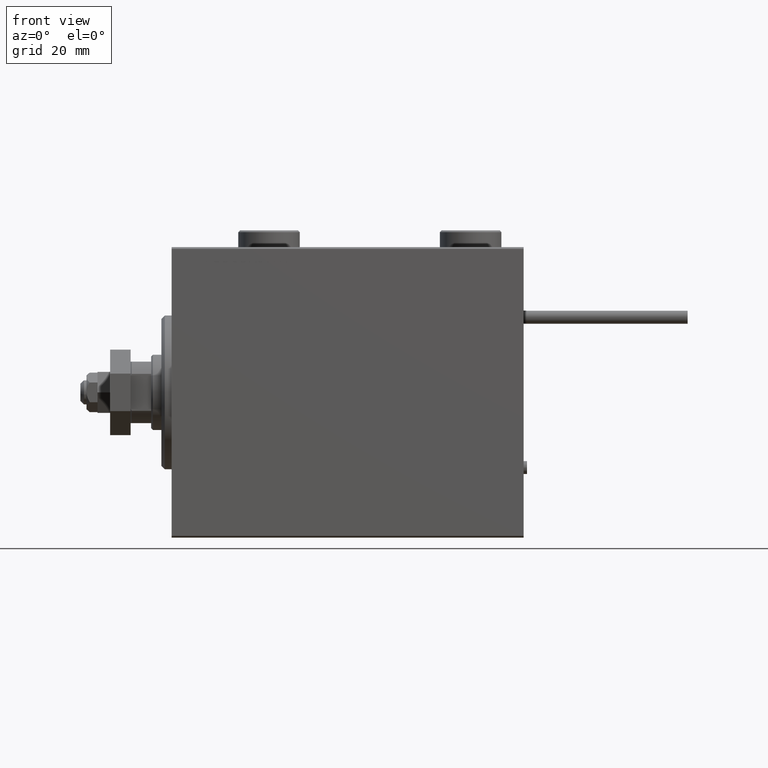
[diagram: clean part render]
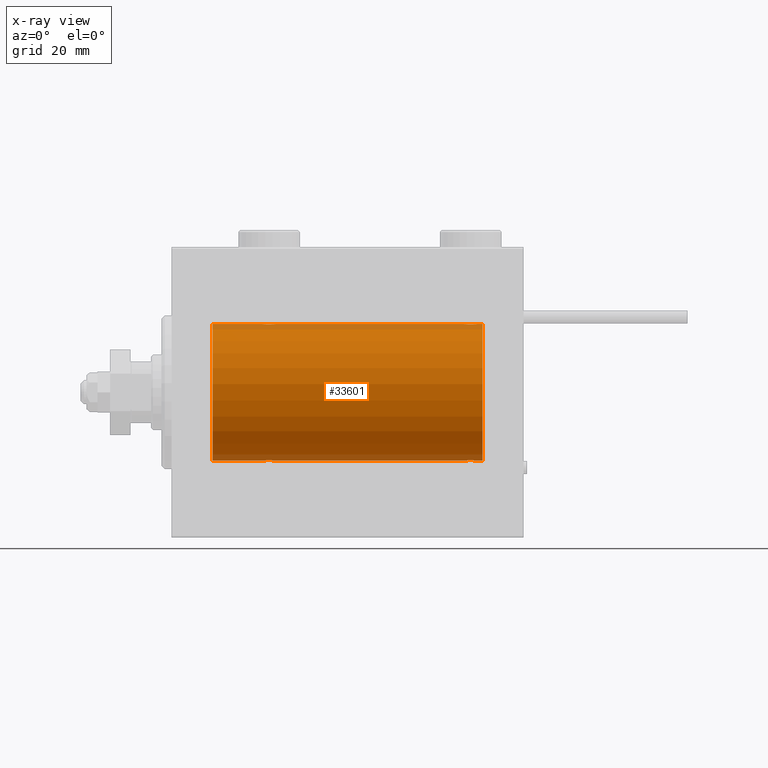
[diagram: x-ray — body ghosted, one internal face saturated and labeled with its STEP entity id]
A machine part, front view, then the same camera in x-ray: the body is ghosted and one INTERNAL B-rep face — a face not visible from any outside direction — is saturated and labeled: STEP entity #33601.
In plain terms, the highlighted cylindrical surface (partial cylindrical patch) has radius 20 mm, axis along (-1, -0, -0).
Its self-contained STEP definition (entity closure, byte-faithful):
#94 = CARTESIAN_POINT ( 'NONE',  ( 85.55244937117494430, -0.5243189001515019543, 19.99457699142849876 ) ) ;
#179 = CARTESIAN_POINT ( 'NONE',  ( 86.98351467081094768, -1.936551476643015191, -19.90603968831098669 ) ) ;
#355 = LINE ( 'NONE', #10432, #9098 ) ;
#619 = CARTESIAN_POINT ( 'NONE',  ( 86.85369326075358742, -1.897222639860597360, 19.90987429971497491 ) ) ;
#720 = CARTESIAN_POINT ( 'NONE',  ( 88.01923512135279282, -1.935816449315129750, -19.90611141657401362 ) ) ;
#778 = VERTEX_POINT ( 'NONE', #7917 ) ;
#883 = CARTESIAN_POINT ( 'NONE',  ( 86.61170562792906935, -1.796691196322320216, 19.91919800395356788 ) ) ;
#958 = CARTESIAN_POINT ( 'NONE',  ( 30.50000000000000000, 2.449293582768389958E-15, -20.00000000000000000 ) ) ;
#1039 = DIRECTION ( 'NONE',  ( -1.000000000000000000, -0.000000000000000000, -0.000000000000000000 ) ) ;
#1534 = CARTESIAN_POINT ( 'NONE',  ( 29.50067219139244656, -1.736582545981375292, 19.92459705242981371 ) ) ;
#1728 = CARTESIAN_POINT ( 'NONE',  ( 11.99999999999999645, 0.000000000000000000, 20.00000000000000000 ) ) ;
#1750 = ORIENTED_EDGE ( 'NONE', *, *, #11177, .T. ) ;
#2014 = CARTESIAN_POINT ( 'NONE',  ( 11.99999999999999645, 0.000000000000000000, 0.000000000000000000 ) ) ;
#2212 = LINE ( 'NONE', #17890, #10176 ) ;
#2329 = CARTESIAN_POINT ( 'NONE',  ( 29.82096906847289119, -1.507328959728493567, 19.94333197382385592 ) ) ;
#2446 = CARTESIAN_POINT ( 'NONE',  ( 27.98351467081095123, -1.936551476643005198, -19.90603968831098314 ) ) ;
#2598 = CARTESIAN_POINT ( 'NONE',  ( 27.49693443660397918, -1.735203193119897902, 19.92471783160911158 ) ) ;
#3048 = B_SPLINE_CURVE_WITH_KNOTS ( 'NONE', 3,
 ( #36732, #16544, #94, #29307, #20803, #12298, #5141, #20282, #883, #619, #28241, #32746, #48991, #21075, #12829, #28782, #8055, #44746, #8580, #28505, #41260, #24261, #29040, #17074, #33274, #33019 ),
 .UNSPECIFIED., .F., .F.,
 ( 4, 2, 2, 2, 2, 2, 2, 2, 2, 2, 2, 2, 4 ),
 ( 0.006256819553329836213, 0.007038738568778784600, 0.007820657584227733855, 0.008211617091952222794, 0.008602576599676711733, 0.008993536107401198937, 0.009384495615125687876, 0.009775455122850176815, 0.01016641463057466402, 0.01055737413829915296, 0.01094833364602364190, 0.01173025266147261630, 0.01251217167692159418 ),
 .UNSPECIFIED. ) ;
#3147 = ORIENTED_EDGE ( 'NONE', *, *, #45146, .F. ) ;
#3234 = CARTESIAN_POINT ( 'NONE',  ( 30.09941524884030173, -1.228758402364235502, -19.96307487248084911 ) ) ;
#3988 = CARTESIAN_POINT ( 'NONE',  ( 26.50000000000001066, -0.2644051013331030209, -20.00000000000000355 ) ) ;
#4132 = VERTEX_POINT ( 'NONE', #1728 ) ;
#4342 = VERTEX_POINT ( 'NONE', #40439 ) ;
#4588 = LINE ( 'NONE', #20513, #12442 ) ;
#5141 = CARTESIAN_POINT ( 'NONE',  ( 86.27971054205535495, -1.589957321664204448, 19.93683391378736403 ) ) ;
#5209 = CARTESIAN_POINT ( 'NONE',  ( 26.50000000000000355, -3.809869420541414000E-15, -20.00000000000000000 ) ) ;
#5231 = CARTESIAN_POINT ( 'NONE',  ( 87.76358144091418012, -1.986835489085820639, -19.90108393514801222 ) ) ;
#5347 = CARTESIAN_POINT ( 'NONE',  ( 89.50000000000000000, 2.449293582762473501E-15, -20.00000000000000000 ) ) ;
#5571 = CYLINDRICAL_SURFACE ( 'NONE', #28522, 20.00000000000000000 ) ;
#5793 = CARTESIAN_POINT ( 'NONE',  ( 27.61170562792909422, -1.796691196322319994, 19.91919800395357143 ) ) ;
#6052 = CARTESIAN_POINT ( 'NONE',  ( 28.23641855908585541, -1.986835489085814643, 19.90108393514801222 ) ) ;
#6192 = ORIENTED_EDGE ( 'NONE', *, *, #39965, .T. ) ;
#6234 = CARTESIAN_POINT ( 'NONE',  ( 26.50000000000000355, -1.552596590610734385E-23, 20.00000000000000000 ) ) ;
#6314 = CARTESIAN_POINT ( 'NONE',  ( 30.49999999999999289, -0.2644051013330969702, 20.00000000000000711 ) ) ;
#6432 = EDGE_CURVE ( 'NONE', #17645, #25548, #3048, .T. ) ;
#6579 = CARTESIAN_POINT ( 'NONE',  ( 30.50000000000000000, -4.014971335008767791E-15, 20.00000000000000000 ) ) ;
#6614 = CARTESIAN_POINT ( 'NONE',  ( 91.00000000000000000, 0.000000000000000000, 0.000000000000000000 ) ) ;
#7917 = CARTESIAN_POINT ( 'NONE',  ( 85.49999999999998579, -1.207436508668459186E-14, -20.00000000000000000 ) ) ;
#7997 = CARTESIAN_POINT ( 'NONE',  ( 30.50000000000000000, -4.014971335008767791E-15, 20.00000000000000000 ) ) ;
#8055 = CARTESIAN_POINT ( 'NONE',  ( 88.14348528733044930, -1.898187925611334315, 19.90978194174746818 ) ) ;
#8419 = CARTESIAN_POINT ( 'NONE',  ( 85.90225308445272390, -1.230936344679285144, -19.96293863536309843 ) ) ;
#8553 = B_SPLINE_CURVE_WITH_KNOTS ( 'NONE', 3,
 ( #38445, #10039, #42458, #38708, #38978, #50431, #10292, #2598, #5793, #26764, #29952, #6052, #37914, #18259, #46183, #51218, #30995, #26502, #1534, #50170, #2329, #42716, #47241, #25973, #6314, #6579 ),
 .UNSPECIFIED., .F., .F.,
 ( 4, 2, 2, 2, 2, 2, 2, 2, 2, 2, 2, 2, 4 ),
 ( 0.006256819553329811059, 0.007038738568778783733, 0.007820657584227756406, 0.008211617091952238406, 0.008602576599676722141, 0.008993536107401204141, 0.009384495615125686141, 0.009775455122850168141, 0.01016641463057465014, 0.01055737413829913214, 0.01094833364602361414, 0.01173025266147257814, 0.01251217167692154214 ),
 .UNSPECIFIED. ) ;
#8580 = CARTESIAN_POINT ( 'NONE',  ( 88.50067219139242525, -1.736582545981368852, 19.92459705242980661 ) ) ;
#8644 = ORIENTED_EDGE ( 'NONE', *, *, #38402, .T. ) ;
#9031 = VECTOR ( 'NONE', #1039, 1000.000000000000000 ) ;
#9098 = VECTOR ( 'NONE', #50853, 1000.000000000000000 ) ;
#9227 = CARTESIAN_POINT ( 'NONE',  ( 85.49999999999998579, -1.553188236289650144E-23, 20.00000000000000000 ) ) ;
#9795 = VERTEX_POINT ( 'NONE', #52513 ) ;
#10026 = AXIS2_PLACEMENT_3D ( 'NONE', #2014, #18210, #50651 ) ;
#10039 = CARTESIAN_POINT ( 'NONE',  ( 26.50000000000000711, -0.2610801504281929919, 20.00000000000000000 ) ) ;
#10176 = VECTOR ( 'NONE', #38331, 1000.000000000000000 ) ;
#10292 = CARTESIAN_POINT ( 'NONE',  ( 27.27971054205535850, -1.589957321664211998, 19.93683391378736047 ) ) ;
#10432 = CARTESIAN_POINT ( 'NONE',  ( 91.00000000000000000, 2.449293598294706513E-15, -20.00000000000000000 ) ) ;
#11177 = EDGE_CURVE ( 'NONE', #4342, #48505, #355, .T. ) ;
#11353 = ORIENTED_EDGE ( 'NONE', *, *, #6432, .T. ) ;
#11975 = EDGE_CURVE ( 'NONE', #9795, #4132, #16781, .T. ) ;
#12130 = CARTESIAN_POINT ( 'NONE',  ( 85.55320515808205073, -0.5270924491156777636, -19.99450181871976540 ) ) ;
#12298 = CARTESIAN_POINT ( 'NONE',  ( 86.17693331080532460, -1.505486175075777311, 19.94347168299868045 ) ) ;
#12442 = VECTOR ( 'NONE', #29022, 1000.000000000000000 ) ;
#12635 = ORIENTED_EDGE ( 'NONE', *, *, #15009, .T. ) ;
#12829 = CARTESIAN_POINT ( 'NONE',  ( 87.76077256031567231, -1.987205673487806967, 19.90104673894210663 ) ) ;
#12918 = CARTESIAN_POINT ( 'NONE',  ( 87.23922743968432769, -1.987205673487818514, -19.90104673894210663 ) ) ;
#13766 = VERTEX_POINT ( 'NONE', #5209 ) ;
#14104 = LINE ( 'NONE', #39324, #42321 ) ;
#14898 = CARTESIAN_POINT ( 'NONE',  ( 30.50000000000000000, 2.449293582768389958E-15, -20.00000000000000000 ) ) ;
#15009 = EDGE_CURVE ( 'NONE', #13766, #9795, #33826, .T. ) ;
#15418 = CARTESIAN_POINT ( 'NONE',  ( 29.14630673924643744, -1.897222639860594029, -19.90987429971496780 ) ) ;
#16544 = CARTESIAN_POINT ( 'NONE',  ( 85.50000000000000000, -0.2610801504281927699, 20.00000000000000355 ) ) ;
#16559 = CARTESIAN_POINT ( 'NONE',  ( 91.00000000000000000, 2.449293598294706513E-15, -20.00000000000000000 ) ) ;
#16781 = CIRCLE ( 'NONE', #10026, 20.00000000000000000 ) ;
#16994 = CARTESIAN_POINT ( 'NONE',  ( 89.50000000000000000, 9.984436361108698300E-16, 20.00000000000000000 ) ) ;
#17074 = CARTESIAN_POINT ( 'NONE',  ( 89.44679484191794927, -0.5270924491156651071, 19.99450181871975829 ) ) ;
#17249 = CARTESIAN_POINT ( 'NONE',  ( 91.00000000000000000, 0.000000000000000000, 20.00000000000000000 ) ) ;
#17645 = VERTEX_POINT ( 'NONE', #9227 ) ;
#17790 = DIRECTION ( 'NONE',  ( 0.000000000000000000, 0.000000000000000000, 1.000000000000000000 ) ) ;
#17890 = CARTESIAN_POINT ( 'NONE',  ( 91.00000000000000000, 0.000000000000000000, 20.00000000000000000 ) ) ;
#18210 = DIRECTION ( 'NONE',  ( -1.000000000000000000, 0.000000000000000000, 0.000000000000000000 ) ) ;
#18259 = CARTESIAN_POINT ( 'NONE',  ( 28.63058871710834552, -2.000100592782553921, 19.89973863218035888 ) ) ;
#19063 = EDGE_CURVE ( 'NONE', #25561, #25548, #2212, .T. ) ;
#19159 = CARTESIAN_POINT ( 'NONE',  ( 29.72028945794465571, -1.589957321664208223, -19.93683391378736047 ) ) ;
#19361 = ORIENTED_EDGE ( 'NONE', *, *, #42300, .F. ) ;
#19422 = CARTESIAN_POINT ( 'NONE',  ( 29.50306556339602437, -1.735203193119894349, -19.92471783160910803 ) ) ;
#19929 = CARTESIAN_POINT ( 'NONE',  ( 27.85651471266959334, -1.898187925611338533, -19.90978194174746818 ) ) ;
#20282 = CARTESIAN_POINT ( 'NONE',  ( 86.49693443660396497, -1.735203193119890352, 19.92471783160910803 ) ) ;
#20378 = CARTESIAN_POINT ( 'NONE',  ( 88.50306556339602082, -1.735203193119900122, -19.92471783160911158 ) ) ;
#20513 = CARTESIAN_POINT ( 'NONE',  ( 91.00000000000000000, 0.000000000000000000, 20.00000000000000000 ) ) ;
#20803 = CARTESIAN_POINT ( 'NONE',  ( 85.90058475115969827, -1.228758402364240609, 19.96307487248084911 ) ) ;
#20900 = CARTESIAN_POINT ( 'NONE',  ( 89.50000000000000000, 2.449293582762473501E-15, -20.00000000000000000 ) ) ;
#21075 = CARTESIAN_POINT ( 'NONE',  ( 87.63058871710828157, -2.000100592782551256, 19.89973863218035888 ) ) ;
#21176 = CARTESIAN_POINT ( 'NONE',  ( 89.24825913460018967, -1.005710574260839651, -19.97614991974274901 ) ) ;
#21240 = LINE ( 'NONE', #37424, #9031 ) ;
#22225 = CARTESIAN_POINT ( 'NONE',  ( 85.49999999999998579, -1.207436508668459186E-14, -20.00000000000000000 ) ) ;
#22361 = CARTESIAN_POINT ( 'NONE',  ( 28.36941128289166159, -2.000100592782553921, -19.89973863218036598 ) ) ;
#22891 = CIRCLE ( 'NONE', #49224, 20.00000000000000000 ) ;
#23409 = CARTESIAN_POINT ( 'NONE',  ( 30.24825913460018612, -1.005710574260838985, -19.97614991974274190 ) ) ;
#24173 = CARTESIAN_POINT ( 'NONE',  ( 27.17903093152710525, -1.507328959728492457, -19.94333197382385592 ) ) ;
#24176 = EDGE_LOOP ( 'NONE', ( #3147, #1750, #43477, #8644, #6192, #12635, #38222, #28548, #30183, #19361, #11353, #52505 ) ) ;
#24261 = CARTESIAN_POINT ( 'NONE',  ( 89.09774691554730452, -1.230936344679272043, 19.96293863536309487 ) ) ;
#24361 = CARTESIAN_POINT ( 'NONE',  ( 86.28194580527849666, -1.591668229360199804, -19.93669678979812687 ) ) ;
#24630 = CARTESIAN_POINT ( 'NONE',  ( 85.50000000000001421, -0.2644051013331136790, -20.00000000000000355 ) ) ;
#25425 = CARTESIAN_POINT ( 'NONE',  ( 88.14630673924646942, -1.897222639860602245, -19.90987429971496425 ) ) ;
#25434 = CARTESIAN_POINT ( 'NONE',  ( 27.28194580527848601, -1.591668229360197140, -19.93669678979812332 ) ) ;
#25496 = DIRECTION ( 'NONE',  ( -1.000000000000000000, -0.000000000000000000, -0.000000000000000000 ) ) ;
#25548 = VERTEX_POINT ( 'NONE', #16994 ) ;
#25561 = VERTEX_POINT ( 'NONE', #17249 ) ;
#25973 = CARTESIAN_POINT ( 'NONE',  ( 30.44679484191797414, -0.5270924491156706582, 19.99450181871975829 ) ) ;
#26006 = DIRECTION ( 'NONE',  ( -1.000000000000000000, 0.000000000000000000, 0.000000000000000000 ) ) ;
#26502 = CARTESIAN_POINT ( 'NONE',  ( 29.38579076670729151, -1.797933656607919817, 19.91908554465558367 ) ) ;
#26679 = EDGE_CURVE ( 'NONE', #40458, #51070, #8553, .T. ) ;
#26764 = CARTESIAN_POINT ( 'NONE',  ( 27.85369326075355545, -1.897222639860597360, 19.90987429971497491 ) ) ;
#26860 = DIRECTION ( 'NONE',  ( -1.000000000000000000, -0.000000000000000000, -0.000000000000000000 ) ) ;
#27649 = CARTESIAN_POINT ( 'NONE',  ( 28.76358144091416236, -1.986835489085814199, -19.90108393514801222 ) ) ;
#27909 = CARTESIAN_POINT ( 'NONE',  ( 27.61420923329272981, -1.797933656607917596, -19.91908554465558367 ) ) ;
#28152 = CARTESIAN_POINT ( 'NONE',  ( 26.90225308445269903, -1.230936344679278260, -19.96293863536309132 ) ) ;
#28241 = CARTESIAN_POINT ( 'NONE',  ( 86.98076487864722139, -1.935816449315123977, 19.90611141657402072 ) ) ;
#28505 = CARTESIAN_POINT ( 'NONE',  ( 88.71805419472150334, -1.591668229360190034, 19.93669678979813042 ) ) ;
#28522 = AXIS2_PLACEMENT_3D ( 'NONE', #46234, #25496, #17790 ) ;
#28548 = ORIENTED_EDGE ( 'NONE', *, *, #34230, .F. ) ;
#28608 = CARTESIAN_POINT ( 'NONE',  ( 85.75313023696931225, -1.008108445278694587, -19.97602680192586888 ) ) ;
#28782 = CARTESIAN_POINT ( 'NONE',  ( 88.01648532918903811, -1.936551476643001202, 19.90603968831098669 ) ) ;
#28797 = DIRECTION ( 'NONE',  ( -1.000000000000000000, -0.000000000000000000, -0.000000000000000000 ) ) ;
#29022 = DIRECTION ( 'NONE',  ( -1.000000000000000000, -0.000000000000000000, -0.000000000000000000 ) ) ;
#29040 = CARTESIAN_POINT ( 'NONE',  ( 89.24686976303071617, -1.008108445278681931, 19.97602680192586178 ) ) ;
#29307 = CARTESIAN_POINT ( 'NONE',  ( 85.75174086539982454, -1.005710574260841872, 19.97614991974274190 ) ) ;
#29401 = CARTESIAN_POINT ( 'NONE',  ( 89.09941524884030173, -1.228758402364235724, -19.96307487248084556 ) ) ;
#29952 = CARTESIAN_POINT ( 'NONE',  ( 27.98076487864722495, -1.935816449315125087, 19.90611141657401362 ) ) ;
#30183 = ORIENTED_EDGE ( 'NONE', *, *, #26679, .T. ) ;
#30995 = CARTESIAN_POINT ( 'NONE',  ( 29.14348528733041377, -1.898187925611340088, 19.90978194174746818 ) ) ;
#31109 = CARTESIAN_POINT ( 'NONE',  ( 29.82306668919470383, -1.505486175075772870, -19.94347168299867334 ) ) ;
#31621 = CARTESIAN_POINT ( 'NONE',  ( 29.01923512135276795, -1.935816449315124643, -19.90611141657401717 ) ) ;
#32315 = CARTESIAN_POINT ( 'NONE',  ( 88.82306668919471804, -1.505486175075774646, -19.94347168299867334 ) ) ;
#32581 = CARTESIAN_POINT ( 'NONE',  ( 86.61420923329271204, -1.797933656607926700, -19.91908554465557302 ) ) ;
#32712 = B_SPLINE_CURVE_WITH_KNOTS ( 'NONE', 3,
 ( #20900, #45637, #44849, #21176, #29401, #32315, #40563, #20378, #49355, #25425, #720, #5231, #36569, #41624, #12918, #179, #33115, #32581, #36310, #24361, #48547, #8419, #28608, #12130, #24630, #22225 ),
 .UNSPECIFIED., .F., .F.,
 ( 4, 2, 2, 2, 2, 2, 2, 2, 2, 2, 2, 2, 4 ),
 ( 0.006256819553329824070, 0.007038738568778795009, 0.007820657584227765080, 0.008211617091952250549, 0.008602576599676736019, 0.008993536107401221488, 0.009384495615125706958, 0.009775455122850190692, 0.01016641463057467790, 0.01055737413829916163, 0.01094833364602364884, 0.01173025266147261630, 0.01251217167692158724 ),
 .UNSPECIFIED. ) ;
#32746 = CARTESIAN_POINT ( 'NONE',  ( 87.23641855908589093, -1.986835489085812867, 19.90108393514801577 ) ) ;
#33019 = CARTESIAN_POINT ( 'NONE',  ( 89.50000000000000000, 9.984436361108698300E-16, 20.00000000000000000 ) ) ;
#33115 = CARTESIAN_POINT ( 'NONE',  ( 86.85651471266957913, -1.898187925611348081, -19.90978194174746818 ) ) ;
#33274 = CARTESIAN_POINT ( 'NONE',  ( 89.49999999999998579, -0.2644051013330985245, 19.99999999999999645 ) ) ;
#33381 = CARTESIAN_POINT ( 'NONE',  ( 27.49932780860757475, -1.736582545981376180, -19.92459705242981371 ) ) ;
#33601 = ADVANCED_FACE ( 'NONE', ( #46508 ), #5571, .F. ) ;
#33826 = LINE ( 'NONE', #16559, #39702 ) ;
#34230 = EDGE_CURVE ( 'NONE', #40458, #4132, #4588, .T. ) ;
#34521 = B_SPLINE_CURVE_WITH_KNOTS ( 'NONE', 3,
 ( #14898, #35091, #43362, #23409, #3234, #31109, #19159, #19422, #51856, #15418, #31621, #27649, #43880, #22361, #38556, #2446, #19929, #27909, #33381, #25434, #24173, #28152, #35868, #40372, #3988, #36643 ),
 .UNSPECIFIED., .F., .F.,
 ( 4, 2, 2, 2, 2, 2, 2, 2, 2, 2, 2, 2, 4 ),
 ( 0.006256819553329842284, 0.007038738568778818427, 0.007820657584227792836, 0.008211617091952278305, 0.008602576599676762040, 0.008993536107401245774, 0.009384495615125729509, 0.009775455122850213244, 0.01016641463057469871, 0.01055737413829918071, 0.01094833364602366618, 0.01173025266147263365, 0.01251217167692159939 ),
 .UNSPECIFIED. ) ;
#35091 = CARTESIAN_POINT ( 'NONE',  ( 30.49999999999999645, -0.2610801504281900498, -19.99999999999999645 ) ) ;
#35868 = CARTESIAN_POINT ( 'NONE',  ( 26.75313023696928738, -1.008108445278687704, -19.97602680192586533 ) ) ;
#36310 = CARTESIAN_POINT ( 'NONE',  ( 86.49932780860756054, -1.736582545981379289, -19.92459705242981016 ) ) ;
#36569 = CARTESIAN_POINT ( 'NONE',  ( 87.63365196142450486, -1.999898234284069432, -19.89975896996866211 ) ) ;
#36643 = CARTESIAN_POINT ( 'NONE',  ( 26.50000000000000355, -3.809869420541414000E-15, -20.00000000000000000 ) ) ;
#36732 = CARTESIAN_POINT ( 'NONE',  ( 85.49999999999998579, -1.553188236289650144E-23, 20.00000000000000000 ) ) ;
#37424 = CARTESIAN_POINT ( 'NONE',  ( 91.00000000000000000, 2.449293598294706513E-15, -20.00000000000000000 ) ) ;
#37914 = CARTESIAN_POINT ( 'NONE',  ( 28.36634803857552001, -1.999898234284063436, 19.89975896996866211 ) ) ;
#38222 = ORIENTED_EDGE ( 'NONE', *, *, #11975, .T. ) ;
#38331 = DIRECTION ( 'NONE',  ( -1.000000000000000000, -0.000000000000000000, -0.000000000000000000 ) ) ;
#38402 = EDGE_CURVE ( 'NONE', #778, #48203, #21240, .T. ) ;
#38445 = CARTESIAN_POINT ( 'NONE',  ( 26.50000000000000355, -1.552596590610734385E-23, 20.00000000000000000 ) ) ;
#38556 = CARTESIAN_POINT ( 'NONE',  ( 28.23922743968432059, -1.987205673487808966, -19.90104673894211018 ) ) ;
#38708 = CARTESIAN_POINT ( 'NONE',  ( 26.75174086539981033, -1.005710574260841206, 19.97614991974274190 ) ) ;
#38978 = CARTESIAN_POINT ( 'NONE',  ( 26.90058475115969827, -1.228758402364236391, 19.96307487248084556 ) ) ;
#39204 = EDGE_CURVE ( 'NONE', #48505, #778, #32712, .T. ) ;
#39324 = CARTESIAN_POINT ( 'NONE',  ( 91.00000000000000000, 0.000000000000000000, 20.00000000000000000 ) ) ;
#39702 = VECTOR ( 'NONE', #28797, 1000.000000000000000 ) ;
#39965 = EDGE_CURVE ( 'NONE', #48203, #13766, #34521, .T. ) ;
#40372 = CARTESIAN_POINT ( 'NONE',  ( 26.55320515808203297, -0.5270924491156698810, -19.99450181871976184 ) ) ;
#40439 = CARTESIAN_POINT ( 'NONE',  ( 91.00000000000000000, 2.449293598294706513E-15, -20.00000000000000000 ) ) ;
#40458 = VERTEX_POINT ( 'NONE', #6234 ) ;
#40563 = CARTESIAN_POINT ( 'NONE',  ( 88.72028945794461663, -1.589957321664213330, -19.93683391378736758 ) ) ;
#41260 = CARTESIAN_POINT ( 'NONE',  ( 88.82096906847289119, -1.507328959728488238, 19.94333197382385947 ) ) ;
#41624 = CARTESIAN_POINT ( 'NONE',  ( 87.36941128289164737, -2.000100592782561471, -19.89973863218036243 ) ) ;
#42220 = DIRECTION ( 'NONE',  ( 0.000000000000000000, 0.000000000000000000, 1.000000000000000000 ) ) ;
#42300 = EDGE_CURVE ( 'NONE', #17645, #51070, #14104, .T. ) ;
#42321 = VECTOR ( 'NONE', #26860, 1000.000000000000000 ) ;
#42458 = CARTESIAN_POINT ( 'NONE',  ( 26.55244937117492299, -0.5243189001515023984, 19.99457699142850586 ) ) ;
#42716 = CARTESIAN_POINT ( 'NONE',  ( 30.09774691554730097, -1.230936344679278482, 19.96293863536309132 ) ) ;
#43362 = CARTESIAN_POINT ( 'NONE',  ( 30.44755062882508412, -0.5243189001514996228, -19.99457699142849876 ) ) ;
#43477 = ORIENTED_EDGE ( 'NONE', *, *, #39204, .T. ) ;
#43880 = CARTESIAN_POINT ( 'NONE',  ( 28.63365196142448355, -1.999898234284062992, -19.89975896996866211 ) ) ;
#44746 = CARTESIAN_POINT ( 'NONE',  ( 88.38579076670728796, -1.797933656607910713, 19.91908554465557657 ) ) ;
#44849 = CARTESIAN_POINT ( 'NONE',  ( 89.44755062882506991, -0.5243189001514980685, -19.99457699142850231 ) ) ;
#45146 = EDGE_CURVE ( 'NONE', #4342, #25561, #22891, .T. ) ;
#45637 = CARTESIAN_POINT ( 'NONE',  ( 89.50000000000001421, -0.2610801504281911045, -19.99999999999999645 ) ) ;
#46183 = CARTESIAN_POINT ( 'NONE',  ( 28.76077256031567586, -1.987205673487810298, 19.90104673894210663 ) ) ;
#46234 = CARTESIAN_POINT ( 'NONE',  ( 91.00000000000000000, 0.000000000000000000, 0.000000000000000000 ) ) ;
#46508 = FACE_OUTER_BOUND ( 'NONE', #24176, .T. ) ;
#47241 = CARTESIAN_POINT ( 'NONE',  ( 30.24686976303072328, -1.008108445278687926, 19.97602680192586888 ) ) ;
#48203 = VERTEX_POINT ( 'NONE', #958 ) ;
#48505 = VERTEX_POINT ( 'NONE', #5347 ) ;
#48547 = CARTESIAN_POINT ( 'NONE',  ( 86.17903093152710881, -1.507328959728500006, -19.94333197382386302 ) ) ;
#48991 = CARTESIAN_POINT ( 'NONE',  ( 87.36634803857553777, -1.999898234284061216, 19.89975896996866922 ) ) ;
#49224 = AXIS2_PLACEMENT_3D ( 'NONE', #6614, #26006, #42220 ) ;
#49355 = CARTESIAN_POINT ( 'NONE',  ( 88.38829437207088802, -1.796691196322323103, -19.91919800395357143 ) ) ;
#50170 = CARTESIAN_POINT ( 'NONE',  ( 29.71805419472152110, -1.591668229360196252, 19.93669678979812332 ) ) ;
#50431 = CARTESIAN_POINT ( 'NONE',  ( 27.17693331080528907, -1.505486175075773758, 19.94347168299867690 ) ) ;
#50651 = DIRECTION ( 'NONE',  ( 0.000000000000000000, 0.000000000000000000, 1.000000000000000000 ) ) ;
#50853 = DIRECTION ( 'NONE',  ( -1.000000000000000000, -0.000000000000000000, -0.000000000000000000 ) ) ;
#51070 = VERTEX_POINT ( 'NONE', #7997 ) ;
#51218 = CARTESIAN_POINT ( 'NONE',  ( 29.01648532918905943, -1.936551476643006753, 19.90603968831098669 ) ) ;
#51856 = CARTESIAN_POINT ( 'NONE',  ( 29.38829437207091999, -1.796691196322316664, -19.91919800395357143 ) ) ;
#52505 = ORIENTED_EDGE ( 'NONE', *, *, #19063, .F. ) ;
#52513 = CARTESIAN_POINT ( 'NONE',  ( 11.99999999999999645, 2.449293598294706513E-15, -20.00000000000000000 ) ) ;